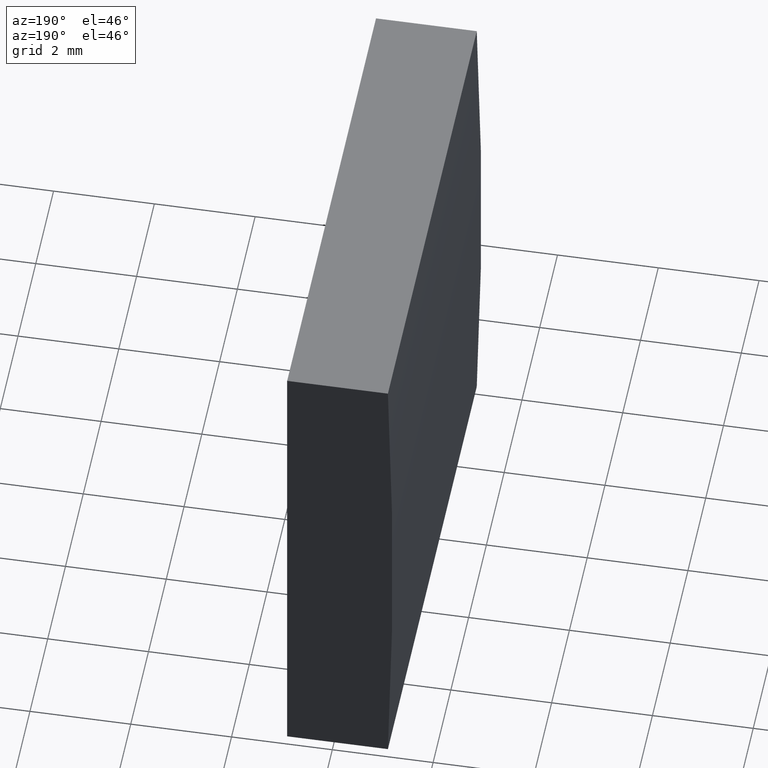
[diagram: clean part render]
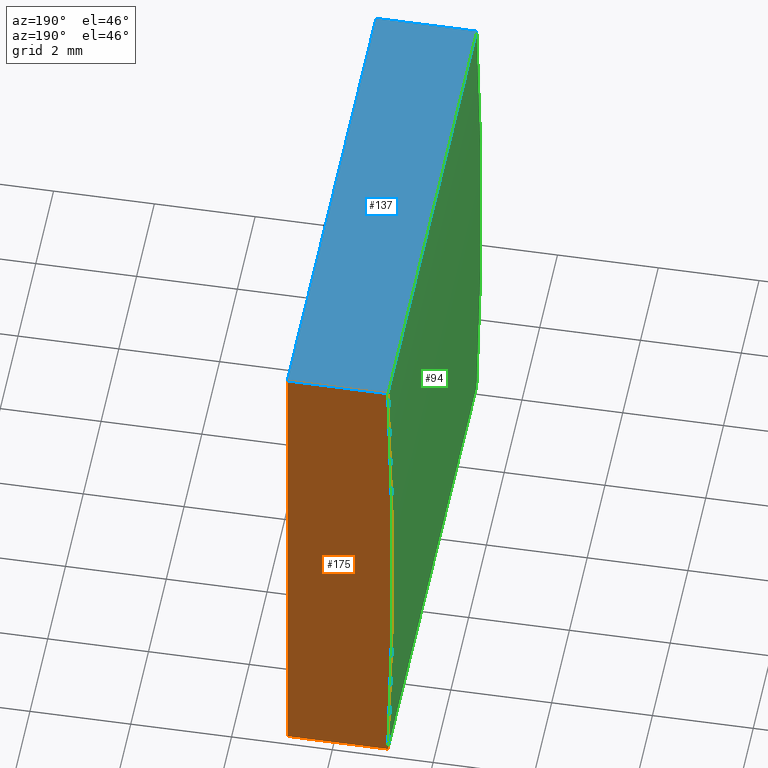
[diagram: same view with three faces highlighted in distinct colors, each labeled with its STEP entity id]
A machine part, auxiliary view with three faces highlighted in distinct colors.
Their STEP definitions:

[orange] entity #175 — the highlighted planar face has unit normal (0, 1, 0).
#9 = VECTOR ( 'NONE', #46, 1000.000000000000000 ) ;
#10 = PLANE ( 'NONE',  #67 ) ;
#14 = VECTOR ( 'NONE', #96, 1000.000000000000000 ) ;
#20 = EDGE_CURVE ( 'NONE', #202, #39, #119, .T. ) ;
#25 = VECTOR ( 'NONE', #65, 1000.000000000000000 ) ;
#35 = EDGE_CURVE ( 'NONE', #124, #143, #198, .T. ) ;
#36 = DIRECTION ( 'NONE',  ( 0.0000000000000000000, 0.0000000000000000000, 1.000000000000000000 ) ) ;
#39 = VERTEX_POINT ( 'NONE', #79 ) ;
#43 = DIRECTION ( 'NONE',  ( 0.0000000000000000000, 1.000000000000000000, 0.0000000000000000000 ) ) ;
#46 = DIRECTION ( 'NONE',  ( -0.0000000000000000000, -0.0000000000000000000, -1.000000000000000000 ) ) ;
#51 = CARTESIAN_POINT ( 'NONE',  ( -133.1038895803932300, 10.00000000000000000, -5.000000000000000000 ) ) ;
#56 = LINE ( 'NONE', #58, #25 ) ;
#58 = CARTESIAN_POINT ( 'NONE',  ( -133.1038895803932300, 10.00000000000000000, 5.000000000000000000 ) ) ;
#61 = ORIENTED_EDGE ( 'NONE', *, *, #35, .T. ) ;
#65 = DIRECTION ( 'NONE',  ( 1.000000000000000000, 0.0000000000000000000, 0.0000000000000000000 ) ) ;
#67 = AXIS2_PLACEMENT_3D ( 'NONE', #68, #43, #93 ) ;
#68 = CARTESIAN_POINT ( 'NONE',  ( 4.355204334851265500, 10.00000000000000000, 4.286263797015675000E-017 ) ) ;
#76 = EDGE_CURVE ( 'NONE', #39, #124, #56, .T. ) ;
#79 = CARTESIAN_POINT ( 'NONE',  ( -133.1038895803932300, 10.00000000000000000, 5.000000000000000000 ) ) ;
#93 = DIRECTION ( 'NONE',  ( 0.0000000000000000000, -0.0000000000000000000, 1.000000000000000000 ) ) ;
#95 = EDGE_LOOP ( 'NONE', ( #127, #109, #61, #166 ) ) ;
#96 = DIRECTION ( 'NONE',  ( -1.000000000000000000, -0.0000000000000000000, -6.074284074018936100E-015 ) ) ;
#107 = CARTESIAN_POINT ( 'NONE',  ( -131.1047956651487700, 10.00000000000000000, -4.999999999999987600 ) ) ;
#109 = ORIENTED_EDGE ( 'NONE', *, *, #76, .T. ) ;
#112 = EDGE_CURVE ( 'NONE', #143, #202, #164, .T. ) ;
#113 = DIRECTION ( 'NONE',  ( 0.0000000000000000000, 1.000000000000000000, 0.0000000000000000000 ) ) ;
#119 = CIRCLE ( 'NONE', #171, 137.5500000000000400 ) ;
#124 = VERTEX_POINT ( 'NONE', #169 ) ;
#127 = ORIENTED_EDGE ( 'NONE', *, *, #20, .T. ) ;
#128 = CARTESIAN_POINT ( 'NONE',  ( -133.1038895803932300, 10.00000000000000000, -5.000000000000000000 ) ) ;
#133 = FACE_OUTER_BOUND ( 'NONE', #95, .T. ) ;
#139 = CARTESIAN_POINT ( 'NONE',  ( -131.1047956651487700, 10.00000000000000000, -4.999999999999987600 ) ) ;
#143 = VERTEX_POINT ( 'NONE', #139 ) ;
#144 = CARTESIAN_POINT ( 'NONE',  ( 4.355204334851265500, 10.00000000000000000, 4.286263797015675000E-017 ) ) ;
#164 = LINE ( 'NONE', #128, #14 ) ;
#166 = ORIENTED_EDGE ( 'NONE', *, *, #112, .T. ) ;
#169 = CARTESIAN_POINT ( 'NONE',  ( -131.1047956651487700, 10.00000000000000000, 5.000000000000000000 ) ) ;
#171 = AXIS2_PLACEMENT_3D ( 'NONE', #144, #113, #36 ) ;
#175 = ADVANCED_FACE ( 'NONE', ( #133 ), #10, .T. ) ;
#198 = LINE ( 'NONE', #107, #9 ) ;
#202 = VERTEX_POINT ( 'NONE', #51 ) ;

[blue] entity #137 — the highlighted planar face has unit normal (0, 0, -1).
#1 = EDGE_CURVE ( 'NONE', #39, #191, #70, .T. ) ;
#5 = ORIENTED_EDGE ( 'NONE', *, *, #76, .F. ) ;
#8 = DIRECTION ( 'NONE',  ( -0.0000000000000000000, -1.000000000000000000, -0.0000000000000000000 ) ) ;
#12 = CARTESIAN_POINT ( 'NONE',  ( -131.1047956651487700, 10.00000000000000000, 5.000000000000000000 ) ) ;
#19 = DIRECTION ( 'NONE',  ( -1.000000000000000000, 0.0000000000000000000, -0.0000000000000000000 ) ) ;
#25 = VECTOR ( 'NONE', #65, 1000.000000000000000 ) ;
#27 = CARTESIAN_POINT ( 'NONE',  ( -133.1038895803932300, 0.0000000000000000000, 5.000000000000000000 ) ) ;
#31 = CARTESIAN_POINT ( 'NONE',  ( -133.1038895803932300, 10.00000000000000000, 5.000000000000000000 ) ) ;
#39 = VERTEX_POINT ( 'NONE', #79 ) ;
#44 = LINE ( 'NONE', #27, #47 ) ;
#47 = VECTOR ( 'NONE', #74, 1000.000000000000000 ) ;
#56 = LINE ( 'NONE', #58, #25 ) ;
#58 = CARTESIAN_POINT ( 'NONE',  ( -133.1038895803932300, 10.00000000000000000, 5.000000000000000000 ) ) ;
#59 = LINE ( 'NONE', #12, #168 ) ;
#60 = FACE_OUTER_BOUND ( 'NONE', #189, .T. ) ;
#63 = DIRECTION ( 'NONE',  ( -0.0000000000000000000, -1.000000000000000000, -0.0000000000000000000 ) ) ;
#65 = DIRECTION ( 'NONE',  ( 1.000000000000000000, 0.0000000000000000000, 0.0000000000000000000 ) ) ;
#70 = LINE ( 'NONE', #31, #120 ) ;
#74 = DIRECTION ( 'NONE',  ( 1.000000000000000000, 0.0000000000000000000, 0.0000000000000000000 ) ) ;
#76 = EDGE_CURVE ( 'NONE', #39, #124, #56, .T. ) ;
#79 = CARTESIAN_POINT ( 'NONE',  ( -133.1038895803932300, 10.00000000000000000, 5.000000000000000000 ) ) ;
#92 = AXIS2_PLACEMENT_3D ( 'NONE', #188, #111, #19 ) ;
#111 = DIRECTION ( 'NONE',  ( 0.0000000000000000000, 0.0000000000000000000, -1.000000000000000000 ) ) ;
#120 = VECTOR ( 'NONE', #8, 1000.000000000000000 ) ;
#124 = VERTEX_POINT ( 'NONE', #169 ) ;
#125 = ORIENTED_EDGE ( 'NONE', *, *, #200, .F. ) ;
#135 = PLANE ( 'NONE',  #92 ) ;
#137 = ADVANCED_FACE ( 'NONE', ( #60 ), #135, .F. ) ;
#140 = EDGE_CURVE ( 'NONE', #191, #177, #44, .T. ) ;
#141 = CARTESIAN_POINT ( 'NONE',  ( -133.1038895803932300, 0.0000000000000000000, 5.000000000000000000 ) ) ;
#142 = CARTESIAN_POINT ( 'NONE',  ( -131.1047956651487700, 0.0000000000000000000, 5.000000000000000000 ) ) ;
#165 = ORIENTED_EDGE ( 'NONE', *, *, #1, .T. ) ;
#168 = VECTOR ( 'NONE', #63, 1000.000000000000000 ) ;
#169 = CARTESIAN_POINT ( 'NONE',  ( -131.1047956651487700, 10.00000000000000000, 5.000000000000000000 ) ) ;
#177 = VERTEX_POINT ( 'NONE', #142 ) ;
#188 = CARTESIAN_POINT ( 'NONE',  ( -133.1038895803932300, 10.00000000000000000, 5.000000000000000000 ) ) ;
#189 = EDGE_LOOP ( 'NONE', ( #199, #125, #5, #165 ) ) ;
#191 = VERTEX_POINT ( 'NONE', #141 ) ;
#199 = ORIENTED_EDGE ( 'NONE', *, *, #140, .T. ) ;
#200 = EDGE_CURVE ( 'NONE', #124, #177, #59, .T. ) ;

[green] entity #94 — the highlighted cylindrical surface (partial cylindrical patch) has radius 137.55 mm, axis along (-0, -1, -0).
#1 = EDGE_CURVE ( 'NONE', #39, #191, #70, .T. ) ;
#6 = LINE ( 'NONE', #83, #196 ) ;
#8 = DIRECTION ( 'NONE',  ( -0.0000000000000000000, -1.000000000000000000, -0.0000000000000000000 ) ) ;
#18 = EDGE_LOOP ( 'NONE', ( #49, #173, #54, #81 ) ) ;
#20 = EDGE_CURVE ( 'NONE', #202, #39, #119, .T. ) ;
#23 = DIRECTION ( 'NONE',  ( -0.0000000000000000000, -1.000000000000000000, -0.0000000000000000000 ) ) ;
#31 = CARTESIAN_POINT ( 'NONE',  ( -133.1038895803932300, 10.00000000000000000, 5.000000000000000000 ) ) ;
#32 = DIRECTION ( 'NONE',  ( 0.0000000000000000000, 0.0000000000000000000, -1.000000000000000000 ) ) ;
#36 = DIRECTION ( 'NONE',  ( 0.0000000000000000000, 0.0000000000000000000, 1.000000000000000000 ) ) ;
#39 = VERTEX_POINT ( 'NONE', #79 ) ;
#49 = ORIENTED_EDGE ( 'NONE', *, *, #149, .T. ) ;
#51 = CARTESIAN_POINT ( 'NONE',  ( -133.1038895803932300, 10.00000000000000000, -5.000000000000000000 ) ) ;
#54 = ORIENTED_EDGE ( 'NONE', *, *, #20, .F. ) ;
#66 = DIRECTION ( 'NONE',  ( 0.0000000000000000000, 1.000000000000000000, 0.0000000000000000000 ) ) ;
#70 = LINE ( 'NONE', #31, #120 ) ;
#79 = CARTESIAN_POINT ( 'NONE',  ( -133.1038895803932300, 10.00000000000000000, 5.000000000000000000 ) ) ;
#81 = ORIENTED_EDGE ( 'NONE', *, *, #138, .T. ) ;
#83 = CARTESIAN_POINT ( 'NONE',  ( -133.1038895803932300, 10.00000000000000000, -5.000000000000000000 ) ) ;
#90 = DIRECTION ( 'NONE',  ( 0.0000000000000000000, 0.0000000000000000000, 1.000000000000000000 ) ) ;
#91 = CIRCLE ( 'NONE', #100, 137.5500000000000400 ) ;
#94 = ADVANCED_FACE ( 'NONE', ( #145 ), #172, .T. ) ;
#100 = AXIS2_PLACEMENT_3D ( 'NONE', #148, #66, #90 ) ;
#113 = DIRECTION ( 'NONE',  ( 0.0000000000000000000, 1.000000000000000000, 0.0000000000000000000 ) ) ;
#119 = CIRCLE ( 'NONE', #171, 137.5500000000000400 ) ;
#120 = VECTOR ( 'NONE', #8, 1000.000000000000000 ) ;
#121 = DIRECTION ( 'NONE',  ( -0.0000000000000000000, -1.000000000000000000, -0.0000000000000000000 ) ) ;
#126 = CARTESIAN_POINT ( 'NONE',  ( 4.355204334851265500, 10.00000000000000000, 4.286263797015675000E-017 ) ) ;
#130 = CARTESIAN_POINT ( 'NONE',  ( -133.1038895803932300, 0.0000000000000000000, -5.000000000000000000 ) ) ;
#138 = EDGE_CURVE ( 'NONE', #202, #195, #6, .T. ) ;
#141 = CARTESIAN_POINT ( 'NONE',  ( -133.1038895803932300, 0.0000000000000000000, 5.000000000000000000 ) ) ;
#144 = CARTESIAN_POINT ( 'NONE',  ( 4.355204334851265500, 10.00000000000000000, 4.286263797015675000E-017 ) ) ;
#145 = FACE_OUTER_BOUND ( 'NONE', #18, .T. ) ;
#148 = CARTESIAN_POINT ( 'NONE',  ( 4.355204334851265500, 0.0000000000000000000, 4.286263797015675000E-017 ) ) ;
#149 = EDGE_CURVE ( 'NONE', #195, #191, #91, .T. ) ;
#171 = AXIS2_PLACEMENT_3D ( 'NONE', #144, #113, #36 ) ;
#172 = CYLINDRICAL_SURFACE ( 'NONE', #190, 137.5500000000000400 ) ;
#173 = ORIENTED_EDGE ( 'NONE', *, *, #1, .F. ) ;
#190 = AXIS2_PLACEMENT_3D ( 'NONE', #126, #23, #32 ) ;
#191 = VERTEX_POINT ( 'NONE', #141 ) ;
#195 = VERTEX_POINT ( 'NONE', #130 ) ;
#196 = VECTOR ( 'NONE', #121, 1000.000000000000000 ) ;
#202 = VERTEX_POINT ( 'NONE', #51 ) ;